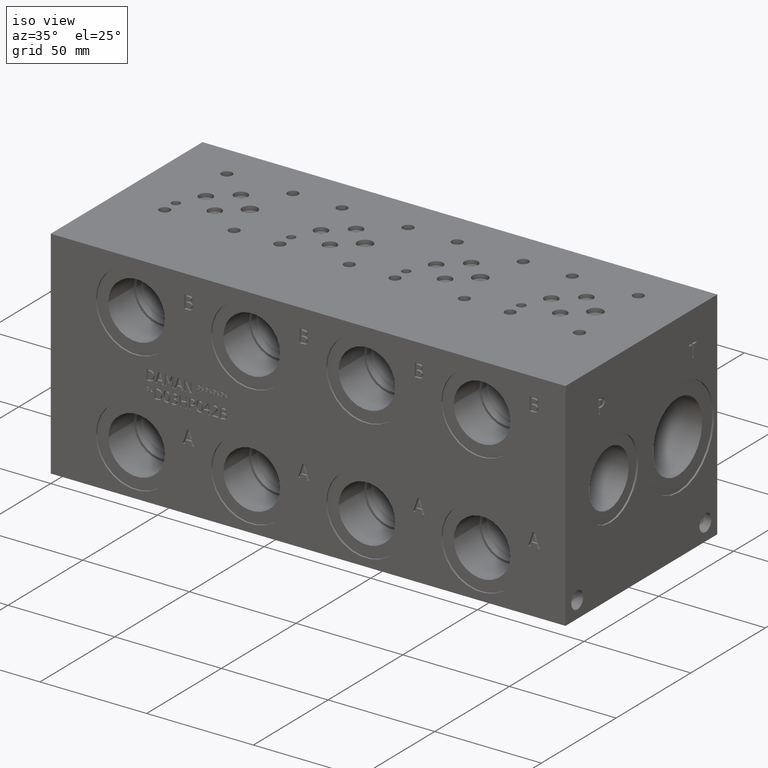
[diagram: clean part render]
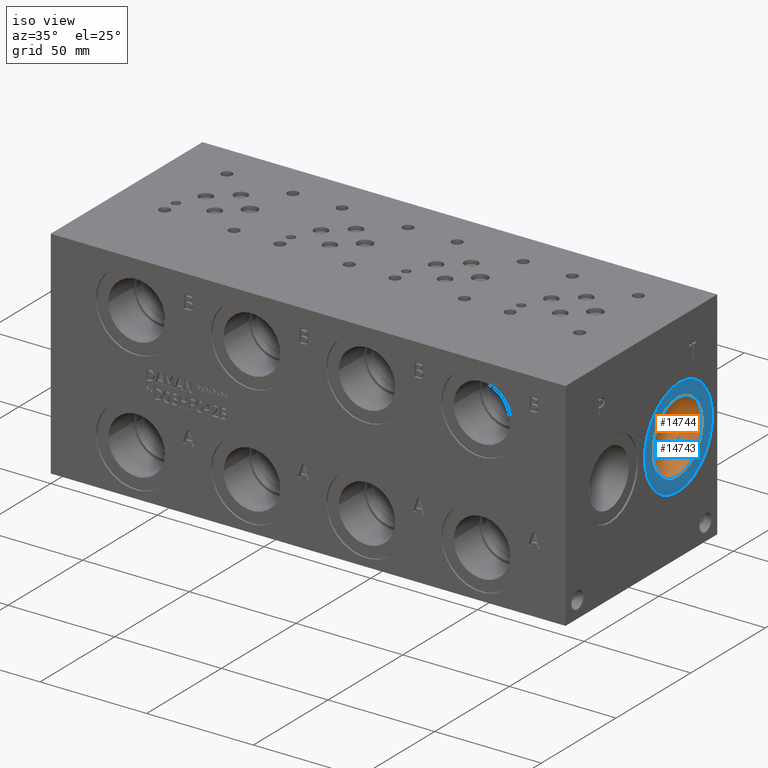
[diagram: same view with the hole feature highlighted: cylindrical wall and planar end face, labeled with their STEP entity ids]
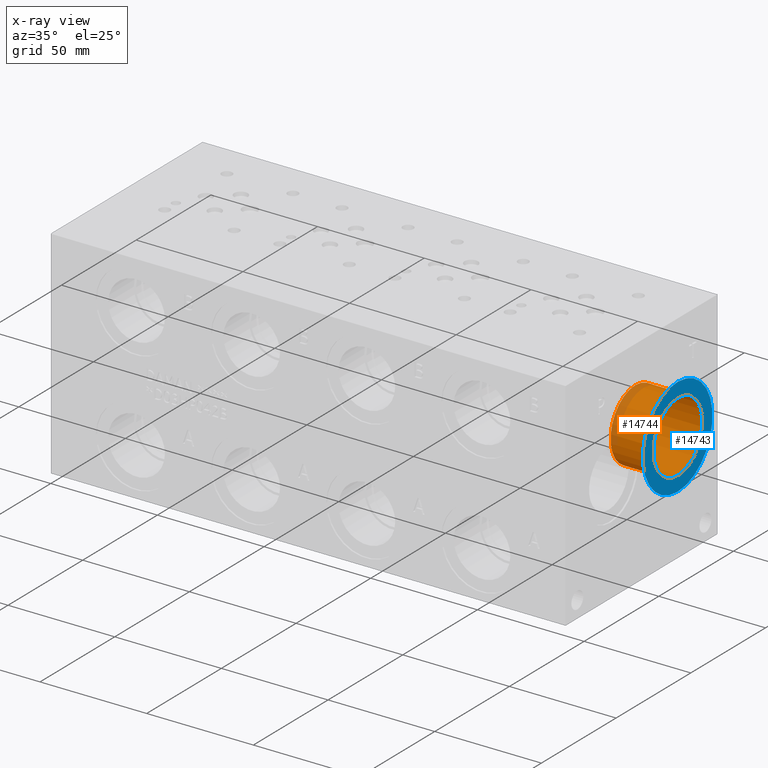
[diagram: x-ray of the same camera — body ghosted, the hole faces saturated]
A machine part, iso view. The highlighted faces form one hole feature of diameter 32.9946 mm: the cylindrical wall (entity #14744, orange) and its adjacent planar end face (entity #14743, blue) — they share a circular edge in the B-rep.
The next image is the same camera in x-ray (body ghosted, the hole faces saturated) — the bore reads through the body.
Wall:
#104=CYLINDRICAL_SURFACE('',#15472,16.4973);
#464=CIRCLE('',#15470,16.4973);
#465=CIRCLE('',#15471,16.4973);
#466=CIRCLE('',#15473,16.4973);
#467=CIRCLE('',#15474,16.4973);
#1837=FACE_OUTER_BOUND('',#2691,.T.);
#2691=EDGE_LOOP('',(#12246,#12247,#12248,#12249,#12250,#12251));
#4112=LINE('',#24744,#5431);
#5431=VECTOR('',#18194,16.4973);
#6670=VERTEX_POINT('',#24738);
#6671=VERTEX_POINT('',#24739);
#6672=VERTEX_POINT('',#24743);
#6673=VERTEX_POINT('',#24745);
#8630=EDGE_CURVE('',#6670,#6671,#464,.T.);
#8631=EDGE_CURVE('',#6671,#6670,#465,.T.);
#8632=EDGE_CURVE('',#6671,#6672,#4112,.T.);
#8633=EDGE_CURVE('',#6672,#6673,#466,.T.);
#8634=EDGE_CURVE('',#6673,#6672,#467,.T.);
#12246=ORIENTED_EDGE('',*,*,#8630,.F.);
#12247=ORIENTED_EDGE('',*,*,#8631,.F.);
#12248=ORIENTED_EDGE('',*,*,#8632,.T.);
#12249=ORIENTED_EDGE('',*,*,#8633,.T.);
#12250=ORIENTED_EDGE('',*,*,#8634,.T.);
#12251=ORIENTED_EDGE('',*,*,#8632,.F.);
#14744=ADVANCED_FACE('',(#1837),#104,.F.);
#15470=AXIS2_PLACEMENT_3D('',#24740,#18188,#18189);
#15471=AXIS2_PLACEMENT_3D('',#24741,#18190,#18191);
#15472=AXIS2_PLACEMENT_3D('',#24742,#18192,#18193);
#15473=AXIS2_PLACEMENT_3D('',#24746,#18195,#18196);
#15474=AXIS2_PLACEMENT_3D('',#24747,#18197,#18198);
#18188=DIRECTION('center_axis',(-1.,0.,0.));
#18189=DIRECTION('ref_axis',(0.,0.,1.));
#18190=DIRECTION('center_axis',(-1.,0.,0.));
#18191=DIRECTION('ref_axis',(0.,0.,1.));
#18192=DIRECTION('center_axis',(-1.,0.,0.));
#18193=DIRECTION('ref_axis',(0.,0.,-1.));
#18194=DIRECTION('',(-1.,0.,0.));
#18195=DIRECTION('center_axis',(-1.,0.,0.));
#18196=DIRECTION('ref_axis',(0.,0.,1.));
#18197=DIRECTION('center_axis',(-1.,0.,0.));
#18198=DIRECTION('ref_axis',(0.,0.,1.));
#24738=CARTESIAN_POINT('',(240.5126,76.2,34.3027));
#24739=CARTESIAN_POINT('',(240.5126,76.2,67.2973));
#24740=CARTESIAN_POINT('Origin',(240.5126,76.2,50.8));
#24741=CARTESIAN_POINT('Origin',(240.5126,76.2,50.8));
#24742=CARTESIAN_POINT('Origin',(230.5685,76.2,50.8));
#24743=CARTESIAN_POINT('',(220.6244,76.2,67.2973));
#24744=CARTESIAN_POINT('',(230.5685,76.2,67.2973));
#24745=CARTESIAN_POINT('',(220.6244,76.2,34.3027));
#24746=CARTESIAN_POINT('Origin',(220.6244,76.2,50.8));
#24747=CARTESIAN_POINT('Origin',(220.6244,76.2,50.8));
End face:
#462=CIRCLE('',#15467,23.2791);
#463=CIRCLE('',#15468,23.2791);
#464=CIRCLE('',#15470,16.4973);
#465=CIRCLE('',#15471,16.4973);
#1185=FACE_BOUND('',#2690,.T.);
#1836=FACE_OUTER_BOUND('',#2689,.T.);
#2689=EDGE_LOOP('',(#12242,#12243));
#2690=EDGE_LOOP('',(#12244,#12245));
#6668=VERTEX_POINT('',#24732);
#6669=VERTEX_POINT('',#24734);
#6670=VERTEX_POINT('',#24738);
#6671=VERTEX_POINT('',#24739);
#8628=EDGE_CURVE('',#6668,#6669,#462,.T.);
#8629=EDGE_CURVE('',#6669,#6668,#463,.T.);
#8630=EDGE_CURVE('',#6670,#6671,#464,.T.);
#8631=EDGE_CURVE('',#6671,#6670,#465,.T.);
#12242=ORIENTED_EDGE('',*,*,#8629,.F.);
#12243=ORIENTED_EDGE('',*,*,#8628,.F.);
#12244=ORIENTED_EDGE('',*,*,#8630,.T.);
#12245=ORIENTED_EDGE('',*,*,#8631,.T.);
#13605=PLANE('',#15469);
#14743=ADVANCED_FACE('',(#1836,#1185),#13605,.F.);
#15467=AXIS2_PLACEMENT_3D('',#24735,#18182,#18183);
#15468=AXIS2_PLACEMENT_3D('',#24736,#18184,#18185);
#15469=AXIS2_PLACEMENT_3D('',#24737,#18186,#18187);
#15470=AXIS2_PLACEMENT_3D('',#24740,#18188,#18189);
#15471=AXIS2_PLACEMENT_3D('',#24741,#18190,#18191);
#18182=DIRECTION('center_axis',(-1.,0.,0.));
#18183=DIRECTION('ref_axis',(0.,0.,1.));
#18184=DIRECTION('center_axis',(-1.,0.,0.));
#18185=DIRECTION('ref_axis',(0.,0.,1.));
#18186=DIRECTION('center_axis',(-1.,0.,0.));
#18187=DIRECTION('ref_axis',(0.,0.,1.));
#18188=DIRECTION('center_axis',(-1.,0.,0.));
#18189=DIRECTION('ref_axis',(0.,0.,1.));
#18190=DIRECTION('center_axis',(-1.,0.,0.));
#18191=DIRECTION('ref_axis',(0.,0.,1.));
#24732=CARTESIAN_POINT('',(240.5126,76.2,74.0791));
#24734=CARTESIAN_POINT('',(240.5126,76.2,27.5209));
#24735=CARTESIAN_POINT('Origin',(240.5126,76.2,50.8));
#24736=CARTESIAN_POINT('Origin',(240.5126,76.2,50.8));
#24737=CARTESIAN_POINT('Origin',(240.5126,76.2,34.3027));
#24738=CARTESIAN_POINT('',(240.5126,76.2,34.3027));
#24739=CARTESIAN_POINT('',(240.5126,76.2,67.2973));
#24740=CARTESIAN_POINT('Origin',(240.5126,76.2,50.8));
#24741=CARTESIAN_POINT('Origin',(240.5126,76.2,50.8));